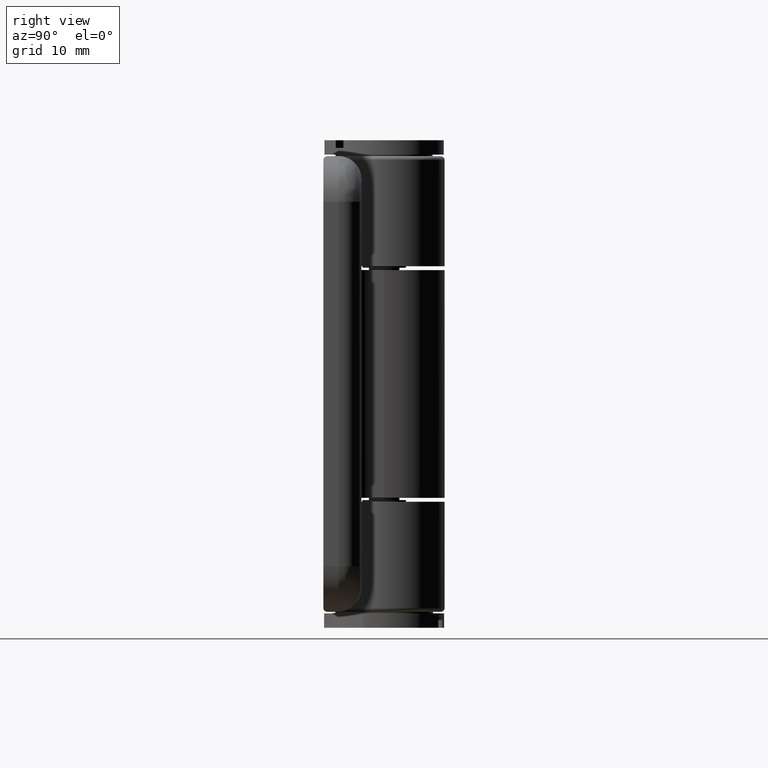
[diagram: clean part render]
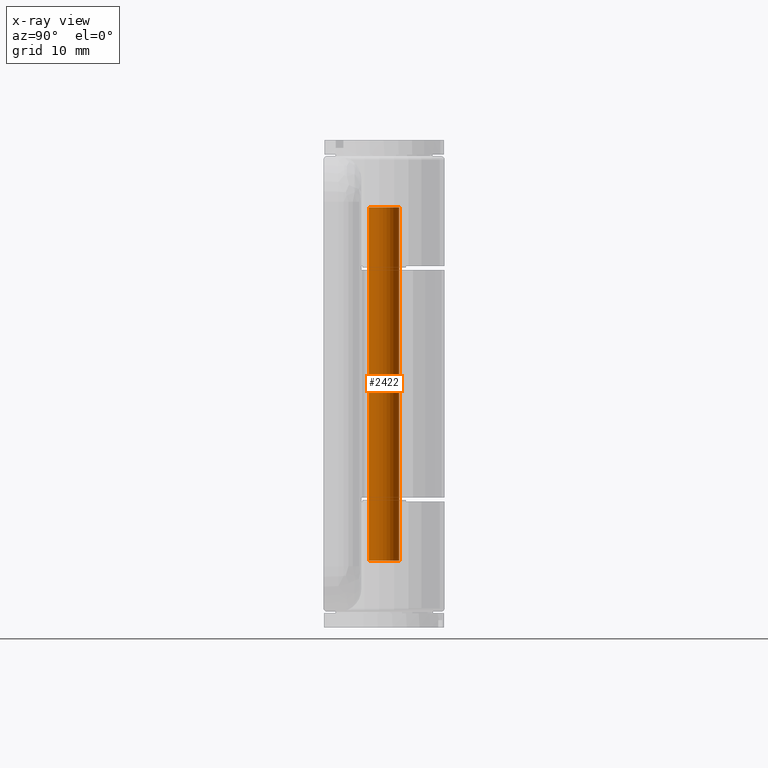
[diagram: x-ray — body ghosted, one internal face saturated and labeled with its STEP entity id]
A machine part, right view, then the same camera in x-ray: the body is ghosted and one INTERNAL B-rep face — a face not visible from any outside direction — is saturated and labeled: STEP entity #2422.
In plain terms, the highlighted cylindrical surface (bore or boss wall) has radius 2 mm, axis along (-0, -0, -1).
Its self-contained STEP definition (entity closure, byte-faithful):
#487=FACE_BOUND('',#751,.T.);
#550=CYLINDRICAL_SURFACE('',#2589,2.);
#591=FACE_OUTER_BOUND('',#750,.T.);
#750=EDGE_LOOP('',(#1669));
#751=EDGE_LOOP('',(#1670));
#971=CIRCLE('',#2588,2.);
#972=CIRCLE('',#2590,2.);
#1100=VERTEX_POINT('',#3656);
#1101=VERTEX_POINT('',#3659);
#1333=EDGE_CURVE('',#1100,#1100,#971,.T.);
#1334=EDGE_CURVE('',#1101,#1101,#972,.T.);
#1669=ORIENTED_EDGE('',*,*,#1333,.F.);
#1670=ORIENTED_EDGE('',*,*,#1334,.F.);
#2422=ADVANCED_FACE('',(#591,#487),#550,.T.);
#2588=AXIS2_PLACEMENT_3D('',#3657,#2888,#2889);
#2589=AXIS2_PLACEMENT_3D('',#3658,#2890,#2891);
#2590=AXIS2_PLACEMENT_3D('',#3660,#2892,#2893);
#2888=DIRECTION('center_axis',(0.,0.,-1.));
#2889=DIRECTION('ref_axis',(-1.,0.,0.));
#2890=DIRECTION('center_axis',(0.,0.,1.));
#2891=DIRECTION('ref_axis',(-1.,0.,0.));
#2892=DIRECTION('center_axis',(0.,0.,1.));
#2893=DIRECTION('ref_axis',(-1.,0.,0.));
#3656=CARTESIAN_POINT('',(2.,2.44929359829471E-16,-23.25));
#3657=CARTESIAN_POINT('Origin',(0.,0.,-23.25));
#3658=CARTESIAN_POINT('Origin',(0.,0.,0.));
#3659=CARTESIAN_POINT('',(2.,2.44929359829471E-16,23.25));
#3660=CARTESIAN_POINT('Origin',(0.,0.,23.25));